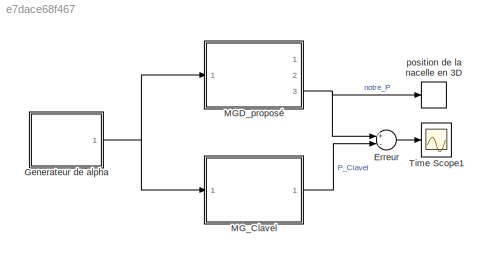
MODEL slx_e7dace68f467
KIND model
CONFIG AbsTol = auto
CONFIG FixedStep = auto
CONFIG MaxStep = auto
CONFIG MinStep = auto
CONFIG RelTol = 1e-3
CONFIG SampleTimeConstraint = Unconstrained
CONFIG Solver = ode45
CONFIG SolverMode = Auto
CONFIG SolverName = ode45
CONFIG StartTime = 0.0
CONFIG StopTime = 0
BLOCK [Sum] Erreur
  InputSameDT = off
  Inputs = +-
  OutDataTypeStr = Inherit: Inherit via internal rule
  Ports = [2, 1]
  SaturateOnIntegerOverflow = off
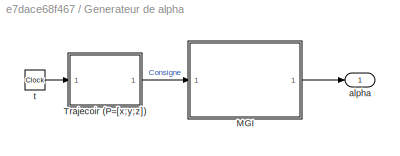
BLOCK [SubSystem] Generateur de alpha
  Ports = [0, 1]
  RequestExecContextInheritance = off
  Variant = off
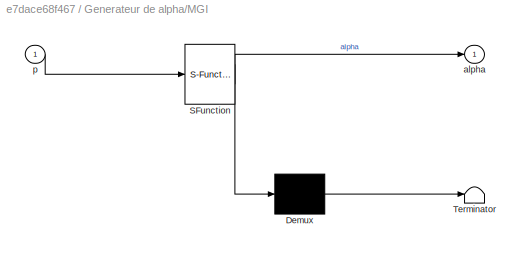
BLOCK [SubSystem] Generateur de alpha/MGI
  ErrorFcn = Stateflow.Translate.translate
  PermitHierarchicalResolution = ExplicitOnly
  Ports = [1, 1]
  RequestExecContextInheritance = off
  SFBlockType = MATLAB Function
  TreatAsAtomicUnit = on
  Variant = off
BLOCK [Demux] Generateur de alpha/MGI/ Demux 
  Outputs = 1
  Ports = [1, 1]
BLOCK [S-Function] Generateur de alpha/MGI/ SFunction 
  EnableBusSupport = on
  FunctionName = sf_sfun
  PortCounts = [1 2]
  Ports = [1, 2]
  SFunctionDeploymentMode = off
  Tag = Stateflow S-Function Modelisation_1_MGD_comparaison_avec_Clavel 2
BLOCK [Terminator] Generateur de alpha/MGI/ Terminator 
BLOCK [Outport] Generateur de alpha/MGI/alpha
  IconDisplay = Port number
BLOCK [Inport] Generateur de alpha/MGI/p
  IconDisplay = Port number
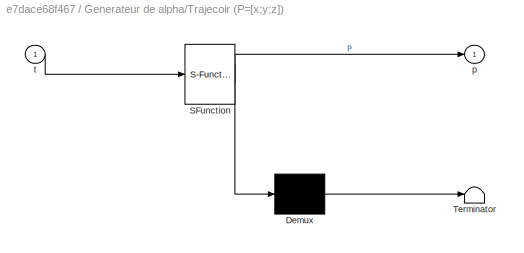
BLOCK [SubSystem] Generateur de alpha/Trajecoir (P=[x;y;z])
  ErrorFcn = Stateflow.Translate.translate
  PermitHierarchicalResolution = ExplicitOnly
  Ports = [1, 1]
  RequestExecContextInheritance = off
  SFBlockType = MATLAB Function
  TreatAsAtomicUnit = on
  Variant = off
BLOCK [Demux] Generateur de alpha/Trajecoir (P=[x;y;z])/ Demux 
  Outputs = 1
  Ports = [1, 1]
BLOCK [S-Function] Generateur de alpha/Trajecoir (P=[x;y;z])/ SFunction 
  EnableBusSupport = on
  FunctionName = sf_sfun
  PortCounts = [1 2]
  Ports = [1, 2]
  SFunctionDeploymentMode = off
  Tag = Stateflow S-Function Modelisation_1_MGD_comparaison_avec_Clavel 5
BLOCK [Terminator] Generateur de alpha/Trajecoir (P=[x;y;z])/ Terminator 
BLOCK [Outport] Generateur de alpha/Trajecoir (P=[x;y;z])/p
  IconDisplay = Port number
BLOCK [Inport] Generateur de alpha/Trajecoir (P=[x;y;z])/t
  IconDisplay = Port number
BLOCK [Outport] Generateur de alpha/alpha
  IconDisplay = Port number
BLOCK [Clock] Generateur de alpha/t
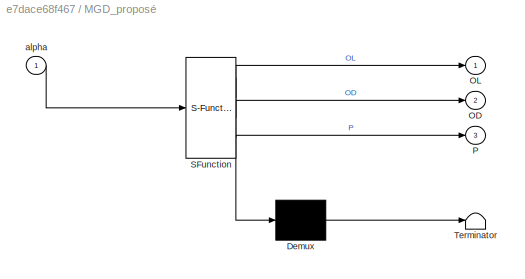
BLOCK [SubSystem] MGD_proposé
  ErrorFcn = Stateflow.Translate.translate
  PermitHierarchicalResolution = ExplicitOnly
  Ports = [1, 3]
  RequestExecContextInheritance = off
  SFBlockType = MATLAB Function
  TreatAsAtomicUnit = on
  Variant = off
BLOCK [Demux] MGD_proposé/ Demux 
  Outputs = 1
  Ports = [1, 1]
BLOCK [S-Function] MGD_proposé/ SFunction 
  EnableBusSupport = on
  FunctionName = sf_sfun
  PortCounts = [1 4]
  Ports = [1, 4]
  SFunctionDeploymentMode = off
  Tag = Stateflow S-Function Modelisation_1_MGD_comparaison_avec_Clavel 4
BLOCK [Terminator] MGD_proposé/ Terminator 
BLOCK [Outport] MGD_proposé/OD
  IconDisplay = Port number
  Port = 2
BLOCK [Outport] MGD_proposé/OL
  IconDisplay = Port number
BLOCK [Outport] MGD_proposé/P
  IconDisplay = Port number
  Port = 3
BLOCK [Inport] MGD_proposé/alpha
  IconDisplay = Port number
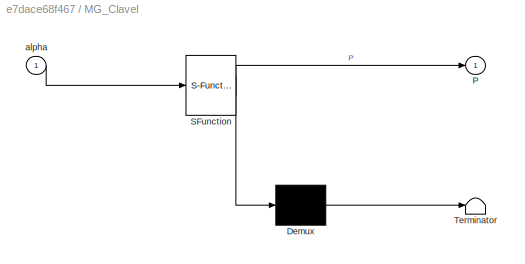
BLOCK [SubSystem] MG_Clavel
  ErrorFcn = Stateflow.Translate.translate
  PermitHierarchicalResolution = ExplicitOnly
  Ports = [1, 1]
  RequestExecContextInheritance = off
  SFBlockType = MATLAB Function
  TreatAsAtomicUnit = on
  Variant = off
BLOCK [Demux] MG_Clavel/ Demux 
  Outputs = 1
  Ports = [1, 1]
BLOCK [S-Function] MG_Clavel/ SFunction 
  EnableBusSupport = on
  FunctionName = sf_sfun
  PortCounts = [1 2]
  Ports = [1, 2]
  SFunctionDeploymentMode = off
  Tag = Stateflow S-Function Modelisation_1_MGD_comparaison_avec_Clavel 1
BLOCK [Terminator] MG_Clavel/ Terminator 
BLOCK [Outport] MG_Clavel/P
  IconDisplay = Port number
BLOCK [Inport] MG_Clavel/alpha
  IconDisplay = Port number
BLOCK [Scope] Time Scope1
  DefaultConfigurationName = spbscopes.TimeScopeBlockCfg
  Ports = [1]
  ScopeSpecificationString = spbscopes.TimeScopeBlockCfg('CurrentConfiguration', extmgr.ConfigurationSet(extmgr.Configuration('Core','General UI',true,'FigureColor',[1 1 1]),extmgr.Configuration('Core','Source UI',true),extmgr.Configuration('Sources','WiredSimulink',true,'DataLoggingVariableName','ScopeData4'),extmgr.Configuration('Visuals','Time Domain',true,'DisplayPropertyDefaults',struct('MinYLimReal','-1.55746075758412e-...<+3003ch>
  UserDataPersistent = on
BLOCK [S-Function] position de la nacelle en 3D 
  CopyFcn = sfun3d([],[],[],'CopyBlock')
  DeleteFcn = sfun3d([],[],[],'DeleteBlock')
  EnableBusSupport = off
  FunctionName = sfun3d
  LoadFcn = sfun3d([],[],[],'LoadBlock')
  NameChangeFcn = sfun3d([],[],[],'NameChange')
  Parameters = ax,T,np,cp,gd,ls,mk
  Ports = [1]
  SFunctionDeploymentMode = off
  StartFcn = sfun3d([],[],[],'Start')
  StopFcn = sfun3d([],[],[],'Stop')
LINE Erreur:1 -> Time Scope1:1
LINE Generateur de alpha/MGI:1 -> Generateur de alpha/alpha:1
LINE Generateur de alpha/Trajecoir (P=[x;y;z]):1 -> Generateur de alpha/MGI:1
LINE Generateur de alpha/t:1 -> Generateur de alpha/Trajecoir (P=[x;y;z]):1
NET Generateur de alpha:1 -> MGD_proposé:1, MG_Clavel:1
NET MGD_proposé:3 -> Erreur:1, position de la nacelle en 3D :1
LINE MG_Clavel:1 -> Erreur:2
note: NET lines group one-source signal fan-out (src -> all destinations, sorted); 1:1 wires keep LINE
CHART MG_Clavel states=1 transitions=1
  STATE_LABEL 'eML_blk_kernel()'
  STATE_LABEL 'SCRIPT:\nfunction P = MGD(alpha)\n\n\nalpha1=alpha(1) ;alpha2=alpha(2) ; alpha3=alpha(3) ;\n%% les constantes :\nl1 = 0.19992; \nl2 = 0.334; \nr = 0.126; \nphi1 = 0 ;\nphi2 = 2*pi/3;\nphi3 = 4*pi/3;\n\n D1 = -l2^2 + l1^2 + r^2 + 2*r*l1*cos(alpha1);\n D2 = -l2^2 + l1^2 + r^2 + 2*r*l1*cos(alpha2);\n D3 = -l2^2 + l1^2 + r^2 + 2*r*l1*cos(alpha3);\n\n E1 = 2*(r + l1*cos(alpha1))*cos(phi1);\n E2 = 2*(r + l1*cos(alpha2))*...<+729ch>'
CHART Generateur de alpha/MGI states=1 transitions=1
  STATE_LABEL 'eML_blk_kernel()'
  STATE_LABEL 'SCRIPT:\nfunction alpha = MGI(p)\n\nl1 = 0.19992; \nl2 = 0.334; \nr = 0.126; \nphi2 = 2*pi/3;\nphi3 = 4*pi/3;\n\n%% projection de P sur Ri\nA2=[cos(phi2) sin(phi2) 0\n    -sin(phi2) cos(phi2) 0\n    0            0      1 ]; \nA3=[cos(phi3) sin(phi3) 0\n    -sin(phi3) cos(phi3) 0\n    0            0      1 ];\np2=A2*p; p3=A3*p ;\n\nx1=p(1); y1=p(2) ; z1=p(3) ; %% p1=p\nx2=p2(1); y2=p2(2) ; z2=p2(3) ;\nx3=p3(1); y3=p3(...<+700ch>'
CHART MGD_proposé states=1 transitions=1
  STATE_LABEL 'eML_blk_kernel()'
  STATE_LABEL 'SCRIPT:\nfunction [OL,OD,P] =MGD(alpha)\n\nalpha1=alpha(1) ;alpha2=alpha(2) ; alpha3=alpha(3) ;\n\n%les constantes\nl1 = 0.19992; \nl2 = 0.334; \nr = 0.126; \nphi2 = 2*pi/3;\nphi3 = 4*pi/3;\n\n%% Les points :\nC1=[r+l1*cos(alpha1) ; 0 ; -l1*sin(alpha1) ]; \nC2=[(r+l1*cos(alpha2))*cos(phi2) ; (r+l1*cos(alpha2))*sin(phi2) ; -l1*sin(alpha2) ]; \nC3=[(r+l1*cos(alpha3))*cos(phi3) ; (r+l1*cos(alpha3))*sin(phi3) ; -l1*...<+632ch>'
CHART Generateur de alpha/Trajecoir (P=[x;y;z]) states=1 transitions=1
  STATE_LABEL 'eML_blk_kernel()'
  STATE_LABEL 'SCRIPT:\nfunction p = fcn(t)\n \nf = 3; \nR=0.25;\nx=R*cos(f*t) ; y=R*sin(f*t) ; z=-0.35;\n\np=[x ; y ; z];\n\n'
